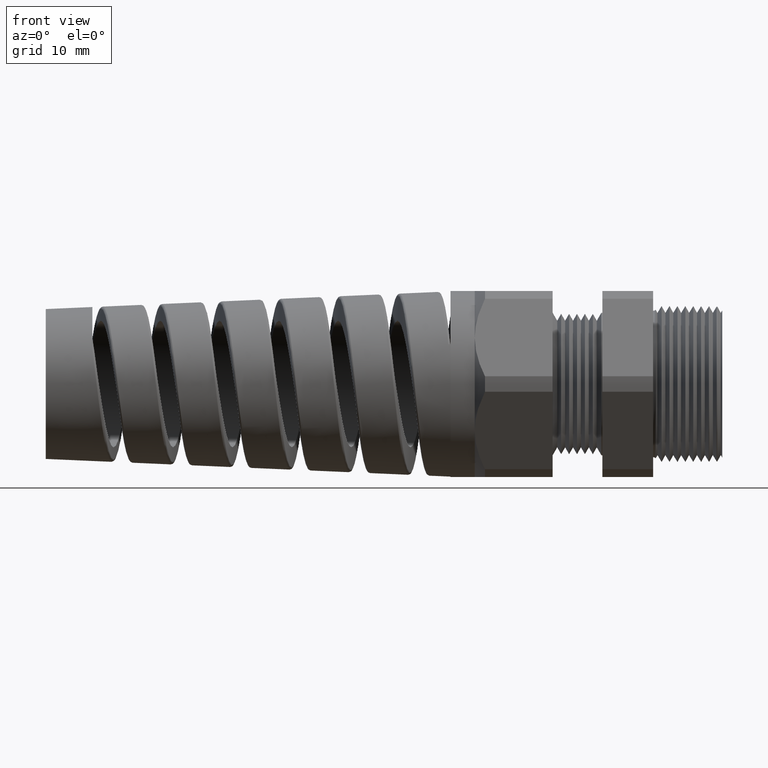
[diagram: clean part render]
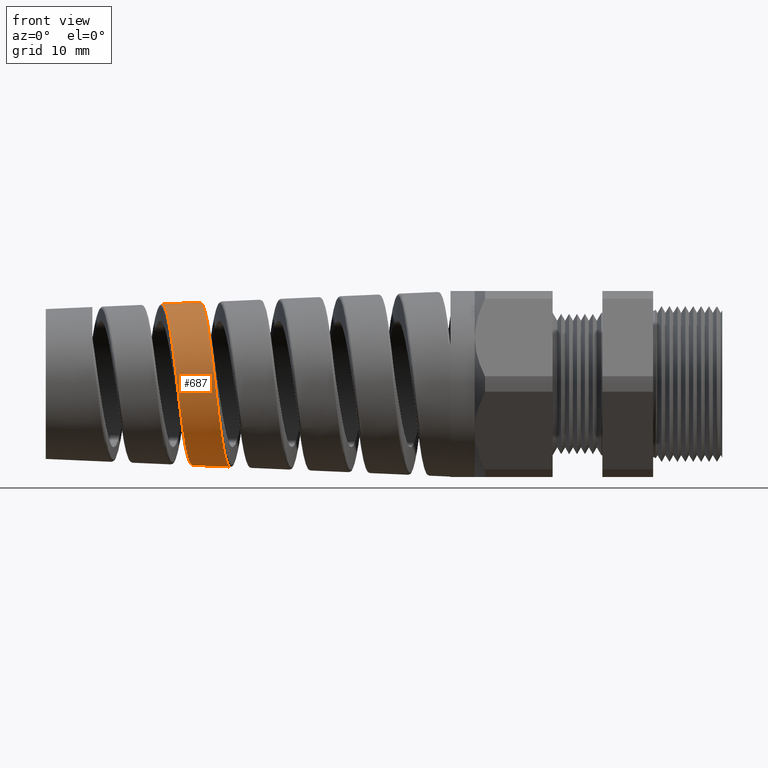
[diagram: same view with one face highlighted and labeled with its STEP entity id]
A machine part, front view. The second image highlights one B-rep face of the part: STEP entity #687.
In plain terms, the highlighted conical surface has half-angle 2.5 deg.
Its self-contained STEP definition (entity closure, byte-faithful):
#527 = VERTEX_POINT ( 'NONE', #2998 ) ;
#555 = VERTEX_POINT ( 'NONE', #3168 ) ;
#574 = VERTEX_POINT ( 'NONE', #3232 ) ;
#592 = EDGE_CURVE ( 'NONE', #555, #527, #3447, .T. ) ;
#606 = EDGE_LOOP ( 'NONE', ( #607, #608, #610, #611 ) ) ;
#607 = ORIENTED_EDGE ( 'NONE', *, *, #592, .F. ) ;
#608 = ORIENTED_EDGE ( 'NONE', *, *, #609, .T. ) ;
#609 = EDGE_CURVE ( 'NONE', #555, #574, #3526, .T. ) ;
#610 = ORIENTED_EDGE ( 'NONE', *, *, #633, .T. ) ;
#611 = ORIENTED_EDGE ( 'NONE', *, *, #612, .T. ) ;
#612 = EDGE_CURVE ( 'NONE', #631, #527, #3654, .T. ) ;
#631 = VERTEX_POINT ( 'NONE', #3766 ) ;
#633 = EDGE_CURVE ( 'NONE', #574, #631, #3764, .T. ) ;
#687 = ADVANCED_FACE ( 'NONE', ( #4289 ), #4312, .T. ) ;
#2998 = CARTESIAN_POINT ( 'NONE',  ( -2.597845326061966700, -7.211775052047706000E-014, 0.4128982398856435000 ) ) ;
#3168 = CARTESIAN_POINT ( 'NONE',  ( -2.790594084065443100, 6.457431289375594700E-013, 0.4044826473667671500 ) ) ;
#3232 = CARTESIAN_POINT ( 'NONE',  ( -2.640551593101815100, -1.067953076936129800E-014, -0.4110336439985810600 ) ) ;
#3444 = DIRECTION ( 'NONE',  ( 0.9990482215818576900, 5.341834311772762600E-018, 0.04361938736533631900 ) ) ;
#3445 = VECTOR ( 'NONE', #3444, 39.37007874015748100 ) ;
#3446 = CARTESIAN_POINT ( 'NONE',  ( -1.290000000000000300, 5.755839955992558400E-017, 0.4699999999999998600 ) ) ;
#3447 = LINE ( 'NONE', #3446, #3445 ) ;
#3526 = B_SPLINE_CURVE_WITH_KNOTS ( 'NONE', 3,
 ( #3614, #3613, #3612, #3611, #3610, #3609, #3608, #3607, #3606, #3605, #3604, #3603, #3602, #3601, #3600, #3599, #3598, #3597, #3596, #3595, #3594, #3593, #3592, #3591, #3590, #3589, #3588, #3587, #3586, #3585, #3584, #3583, #3582, #3581, #3580, #3579, #3578, #3577, #3576, #3575, #3574, #3573, #3572, #3571, #3570, #3569 ),
 .UNSPECIFIED., .F., .F.,
 ( 4, 2, 2, 2, 2, 2, 2, 2, 2, 2, 2, 2, 2, 2, 2, 2, 2, 2, 2, 2, 2, 2, 4 ),
 ( 0.07564942188339636400, 0.07771398169970587800, 0.07874626160786063500, 0.07977854151601537800, 0.08081082142417013400, 0.08184310133232489100, 0.08390766114863440500, 0.08493994105678917500, 0.08597222096494391800, 0.08803678078125343200, 0.08906906068940817500, 0.09010134059756293200, 0.09216590041387243100, 0.09423046023018194500, 0.09526274013833668800, 0.09629502004649145900, 0.09835957986280097200, 0.1004241396791104900, 0.1024886994954200000, 0.1035209794035747400, 0.1045532593117295100, 0.1066178191280390100, 0.1086823789443485300 ),
 .UNSPECIFIED. ) ;
#3569 = CARTESIAN_POINT ( 'NONE',  ( -2.640551593101815100, -1.067953076936129800E-014, -0.4110336439985810600 ) ) ;
#3570 = CARTESIAN_POINT ( 'NONE',  ( -2.643638505219184400, -0.02657501585116921200, -0.4108988665048604600 ) ) ;
#3571 = CARTESIAN_POINT ( 'NONE',  ( -2.646718839060767400, -0.05306635215078344500, -0.4082115956935021800 ) ) ;
#3572 = CARTESIAN_POINT ( 'NONE',  ( -2.652986150408361600, -0.1058606289678078700, -0.3975192401195236100 ) ) ;
#3573 = CARTESIAN_POINT ( 'NONE',  ( -2.656075945240358800, -0.1313509772339119000, -0.3896727058154218500 ) ) ;
#3574 = CARTESIAN_POINT ( 'NONE',  ( -2.660716368825528600, -0.1681401141674449300, -0.3743408486409195400 ) ) ;
#3575 = CARTESIAN_POINT ( 'NONE',  ( -2.662264968856898700, -0.1801680153474742000, -0.3686307043352423100 ) ) ;
#3576 = CARTESIAN_POINT ( 'NONE',  ( -2.665380330437649100, -0.2037421324785285400, -0.3559869555254486800 ) ) ;
#3577 = CARTESIAN_POINT ( 'NONE',  ( -2.666954248529145300, -0.2153368422750760500, -0.3490150010986474100 ) ) ;
#3578 = CARTESIAN_POINT ( 'NONE',  ( -2.671631543894721800, -0.2486854339591037500, -0.3266602058719139700 ) ) ;
#3579 = CARTESIAN_POINT ( 'NONE',  ( -2.674714619195190900, -0.2692074174760136800, -0.3097761908028989200 ) ) ;
#3580 = CARTESIAN_POINT ( 'NONE',  ( -2.680929825070202300, -0.3068674451848099600, -0.2721104530137489200 ) ) ;
#3581 = CARTESIAN_POINT ( 'NONE',  ( -2.684087239202104700, -0.3241028211047961600, -0.2511102690188631900 ) ) ;
#3582 = CARTESIAN_POINT ( 'NONE',  ( -2.690307760632954200, -0.3536974996390873600, -0.2068209913380521800 ) ) ;
#3583 = CARTESIAN_POINT ( 'NONE',  ( -2.693397066370862200, -0.3662493820645337800, -0.1833981227698374400 ) ) ;
#3584 = CARTESIAN_POINT ( 'NONE',  ( -2.698087969722746200, -0.3816513183055226200, -0.1463256304659227300 ) ) ;
#3585 = CARTESIAN_POINT ( 'NONE',  ( -2.699667370181171800, -0.3862200369990674300, -0.1335908144916983200 ) ) ;
#3586 = CARTESIAN_POINT ( 'NONE',  ( -2.702795252846726300, -0.3940020561404999300, -0.1079965711465525500 ) ) ;
#3587 = CARTESIAN_POINT ( 'NONE',  ( -2.704350822949189900, -0.3972433326385346700, -0.09508280657217389700 ) ) ;
#3588 = CARTESIAN_POINT ( 'NONE',  ( -2.709015046870334200, -0.4050556989728293400, -0.05600100340918542200 ) ) ;
#3589 = CARTESIAN_POINT ( 'NONE',  ( -2.712125383397518500, -0.4077339776247356200, -0.02945341492018577900 ) ) ;
#3590 = CARTESIAN_POINT ( 'NONE',  ( -2.718433197554022600, -0.4077922884286196400, 0.02439969757580686900 ) ) ;
#3591 = CARTESIAN_POINT ( 'NONE',  ( -2.721537698360792800, -0.4051795441912979800, 0.05089419831666543200 ) ) ;
#3592 = CARTESIAN_POINT ( 'NONE',  ( -2.726210023574334500, -0.3974473393240899900, 0.09000198615488010100 ) ) ;
#3593 = CARTESIAN_POINT ( 'NONE',  ( -2.727770046660760600, -0.3942298034253553500, 0.1029314908093576500 ) ) ;
#3594 = CARTESIAN_POINT ( 'NONE',  ( -2.730911009184930900, -0.3864840544780855400, 0.1285707293306473400 ) ) ;
#3595 = CARTESIAN_POINT ( 'NONE',  ( -2.732495865387805500, -0.3819361158568965700, 0.1413085716085779300 ) ) ;
#3596 = CARTESIAN_POINT ( 'NONE',  ( -2.737202057209368700, -0.3666066239015164900, 0.1783578878905386600 ) ) ;
#3597 = CARTESIAN_POINT ( 'NONE',  ( -2.740308817994052700, -0.3540874620673596900, 0.2017912541542011800 ) ) ;
#3598 = CARTESIAN_POINT ( 'NONE',  ( -2.745006148839786800, -0.3318895615906454800, 0.2350474378350919700 ) ) ;
#3599 = CARTESIAN_POINT ( 'NONE',  ( -2.746584237519356500, -0.3238867649159971600, 0.2458505756938486100 ) ) ;
#3600 = CARTESIAN_POINT ( 'NONE',  ( -2.749745017123538900, -0.3068207377416793400, 0.2666346307543276400 ) ) ;
#3601 = CARTESIAN_POINT ( 'NONE',  ( -2.751313331975982400, -0.2978394399070585800, 0.2765234805892316500 ) ) ;
#3602 = CARTESIAN_POINT ( 'NONE',  ( -2.756005728509800500, -0.2695939114840169600, 0.3047249977333631500 ) ) ;
#3603 = CARTESIAN_POINT ( 'NONE',  ( -2.759116987825232800, -0.2490402242727292600, 0.3215864095143296500 ) ) ;
#3604 = CARTESIAN_POINT ( 'NONE',  ( -2.763851920667741400, -0.2155704461132539600, 0.3438913198452532800 ) ) ;
#3605 = CARTESIAN_POINT ( 'NONE',  ( -2.765441366111852000, -0.2039679626873027200, 0.3508149923688300100 ) ) ;
#3606 = CARTESIAN_POINT ( 'NONE',  ( -2.768587750692219600, -0.1803883605224014000, 0.3633493006923471700 ) ) ;
#3607 = CARTESIAN_POINT ( 'NONE',  ( -2.770153601846701500, -0.1683492675697307300, 0.3690039252334162400 ) ) ;
#3608 = CARTESIAN_POINT ( 'NONE',  ( -2.773284029747510500, -0.1437815147227544100, 0.3791061278552103100 ) ) ;
#3609 = CARTESIAN_POINT ( 'NONE',  ( -2.774849165493653600, -0.1312529028789832800, 0.3835536482603972800 ) ) ;
#3610 = CARTESIAN_POINT ( 'NONE',  ( -2.777994391721427400, -0.1057012846946303300, 0.3912246210255597700 ) ) ;
#3611 = CARTESIAN_POINT ( 'NONE',  ( -2.779582346043929500, -0.09261104529929871400, 0.3944601602419575100 ) ) ;
#3612 = CARTESIAN_POINT ( 'NONE',  ( -2.784331980078875700, -0.05307654956517648300, 0.4021583282298105700 ) ) ;
#3613 = CARTESIAN_POINT ( 'NONE',  ( -2.787453783477083400, -0.02659534823955591100, 0.4046197558515134400 ) ) ;
#3614 = CARTESIAN_POINT ( 'NONE',  ( -2.790594084065443100, 6.457431289375594700E-013, 0.4044826473667671500 ) ) ;
#3615 = CARTESIAN_POINT ( 'NONE',  ( -2.578978352391649400, -0.1595401493523141100, 0.3824437383575017800 ) ) ;
#3616 = CARTESIAN_POINT ( 'NONE',  ( -2.575852586766770500, -0.1841074040533778600, 0.3709026579263849900 ) ) ;
#3617 = CARTESIAN_POINT ( 'NONE',  ( -2.572712243251698000, -0.2081593453715828700, 0.3581166181327493100 ) ) ;
#3618 = CARTESIAN_POINT ( 'NONE',  ( -2.571126232764451300, -0.2199887463234264400, 0.3510586516290533600 ) ) ;
#3619 = CARTESIAN_POINT ( 'NONE',  ( -2.566390062615004000, -0.2541780566262816200, 0.3282753082161024600 ) ) ;
#3620 = CARTESIAN_POINT ( 'NONE',  ( -2.563276319611233100, -0.2751587467247250700, 0.3110600728962639700 ) ) ;
#3621 = CARTESIAN_POINT ( 'NONE',  ( -2.558587096407187700, -0.3039775187611681300, 0.2822858318247125600 ) ) ;
#3622 = CARTESIAN_POINT ( 'NONE',  ( -2.557020332357838700, -0.3131385436700187000, 0.2721990699705069700 ) ) ;
#3623 = CARTESIAN_POINT ( 'NONE',  ( -2.553864621236673600, -0.3305422497410826500, 0.2510063581958502100 ) ) ;
#3624 = CARTESIAN_POINT ( 'NONE',  ( -2.552285211850424700, -0.3387265294031154800, 0.2399607221188778700 ) ) ;
#3625 = CARTESIAN_POINT ( 'NONE',  ( -2.547590184313560400, -0.3613944781303312100, 0.2060015788851859700 ) ) ;
#3626 = CARTESIAN_POINT ( 'NONE',  ( -2.544489196783734200, -0.3741692761688518200, 0.1820847243625468600 ) ) ;
#3627 = CARTESIAN_POINT ( 'NONE',  ( -2.539789003027303600, -0.3898068189056149700, 0.1442951404549291900 ) ) ;
#3628 = CARTESIAN_POINT ( 'NONE',  ( -2.538205349232397700, -0.3944473561496872900, 0.1313028369261906300 ) ) ;
#3629 = CARTESIAN_POINT ( 'NONE',  ( -2.535061756600646400, -0.4023604548521547100, 0.1051156132975873300 ) ) ;
#3630 = CARTESIAN_POINT ( 'NONE',  ( -2.533500504604366800, -0.4056460635834090400, 0.09191343408518004600 ) ) ;
#3631 = CARTESIAN_POINT ( 'NONE',  ( -2.528828174007897300, -0.4135400179158212900, 0.05199154568622237800 ) ) ;
#3632 = CARTESIAN_POINT ( 'NONE',  ( -2.525726580773352700, -0.4162042733763342000, 0.02495971702135556200 ) ) ;
#3633 = CARTESIAN_POINT ( 'NONE',  ( -2.519430457989285000, -0.4161496611131468800, -0.02995426471859139600 ) ) ;
#3634 = CARTESIAN_POINT ( 'NONE',  ( -2.516318546168910200, -0.4134137911962104700, -0.05710825563968299800 ) ) ;
#3635 = CARTESIAN_POINT ( 'NONE',  ( -2.511658232896980500, -0.4054415228104644200, -0.09699266799504634200 ) ) ;
#3636 = CARTESIAN_POINT ( 'NONE',  ( -2.510103650658834800, -0.4021346612602723600, -0.1101680387047160600 ) ) ;
#3637 = CARTESIAN_POINT ( 'NONE',  ( -2.506977581414541000, -0.3941985373099687900, -0.1362738811193656100 ) ) ;
#3638 = CARTESIAN_POINT ( 'NONE',  ( -2.505397947004925000, -0.3895382620540656600, -0.1492687659865351600 ) ) ;
#3639 = CARTESIAN_POINT ( 'NONE',  ( -2.500703624839488700, -0.3738099821077146000, -0.1871325873170045800 ) ) ;
#3640 = CARTESIAN_POINT ( 'NONE',  ( -2.497615442506206500, -0.3609956800753682000, -0.2110411634383256900 ) ) ;
#3641 = CARTESIAN_POINT ( 'NONE',  ( -2.491402504349323100, -0.3308020896956969100, -0.2562278023787750200 ) ) ;
#3642 = CARTESIAN_POINT ( 'NONE',  ( -2.488249898674433200, -0.3132133996483113500, -0.2776617881578137800 ) ) ;
#3643 = CARTESIAN_POINT ( 'NONE',  ( -2.482037447811841900, -0.2747610994522422500, -0.3161197560563879800 ) ) ;
#3644 = CARTESIAN_POINT ( 'NONE',  ( -2.478953820415830100, -0.2538168250780285000, -0.3333479209295797700 ) ) ;
#3645 = CARTESIAN_POINT ( 'NONE',  ( -2.474278410934112000, -0.2198022310982487600, -0.3561496494151317200 ) ) ;
#3646 = CARTESIAN_POINT ( 'NONE',  ( -2.472704806599359500, -0.2079690318397104100, -0.3632660536613193100 ) ) ;
#3647 = CARTESIAN_POINT ( 'NONE',  ( -2.469588268774982200, -0.1838935228416621900, -0.3761786657586820800 ) ) ;
#3648 = CARTESIAN_POINT ( 'NONE',  ( -2.468039853293590100, -0.1716126767957388600, -0.3820081254614266000 ) ) ;
#3649 = CARTESIAN_POINT ( 'NONE',  ( -2.463402216159560300, -0.1340591148797667100, -0.3976562796722521400 ) ) ;
#3650 = CARTESIAN_POINT ( 'NONE',  ( -2.460321149235582500, -0.1080820847798017300, -0.4056523108627024800 ) ) ;
#3651 = CARTESIAN_POINT ( 'NONE',  ( -2.454057750021596500, -0.05418170671904286300, -0.4165681973054674600 ) ) ;
#3652 = CARTESIAN_POINT ( 'NONE',  ( -2.450974368823395800, -0.02711959280144550200, -0.4193107643645551700 ) ) ;
#3653 = CARTESIAN_POINT ( 'NONE',  ( -2.447886787353730700, -3.609828005222353200E-015, -0.4194455710828277600 ) ) ;
#3654 = B_SPLINE_CURVE_WITH_KNOTS ( 'NONE', 3,
 ( #3653, #3652, #3651, #3650, #3649, #3648, #3647, #3646, #3645, #3644, #3643, #3642, #3641, #3640, #3639, #3638, #3637, #3636, #3635, #3634, #3633, #3632, #3631, #3630, #3629, #3628, #3627, #3626, #3625, #3624, #3623, #3622, #3621, #3620, #3619, #3618, #3617, #3616, #3615, #3696, #3695, #3694, #3693, #3692, #3691 ),
 .UNSPECIFIED., .F., .F.,
 ( 4, 2, 2, 2, 2, 2, 2, 2, 2, 2, 2, 2, 2, 2, 2, 2, 2, 2, 2, 1, 2, 2, 4 ),
 ( 0.2636588993386535500, 0.2657608995170169800, 0.2678628996953804100, 0.2689138997845621500, 0.2699648998737438400, 0.2720669000521072600, 0.2741689002304706900, 0.2762709004088341200, 0.2773219004980158100, 0.2783729005871975500, 0.2804749007655609700, 0.2825769009439244000, 0.2836279010331061400, 0.2846789011222878300, 0.2867809013006513100, 0.2878319013898330000, 0.2888829014790147400, 0.2909849016573781700, 0.2920359017465598600, 0.2930869018357416000, 0.2941379019249232800, 0.2951889020141050300, 0.2972909021924684500 ),
 .UNSPECIFIED. ) ;
#3691 = CARTESIAN_POINT ( 'NONE',  ( -2.597845326061966700, -7.211775052047706000E-014, 0.4128982398856435000 ) ) ;
#3692 = CARTESIAN_POINT ( 'NONE',  ( -2.594705642358744700, -0.02715273916876597600, 0.4130353214365560200 ) ) ;
#3693 = CARTESIAN_POINT ( 'NONE',  ( -2.591583359934301000, -0.05417245833865679000, 0.4105190453648857600 ) ) ;
#3694 = CARTESIAN_POINT ( 'NONE',  ( -2.586839849220316600, -0.09448756738330925400, 0.4026680069489092000 ) ) ;
#3695 = CARTESIAN_POINT ( 'NONE',  ( -2.585250630691951400, -0.1078658631179117100, 0.3993618369313971500 ) ) ;
#3696 = CARTESIAN_POINT ( 'NONE',  ( -2.582106253958031900, -0.1339594035851445800, 0.3915269338351477500 ) ) ;
#3764 = LINE ( 'NONE', #3788, #3787 ) ;
#3766 = CARTESIAN_POINT ( 'NONE',  ( -2.447886787353730700, -3.609828005222353200E-015, -0.4194455710828277600 ) ) ;
#3786 = DIRECTION ( 'NONE',  ( 0.9990482215818576900, 0.0000000000000000000, -0.04361938736533631900 ) ) ;
#3787 = VECTOR ( 'NONE', #3786, 39.37007874015748100 ) ;
#3788 = CARTESIAN_POINT ( 'NONE',  ( -1.290000000000000300, 0.0000000000000000000, -0.4699999999999998600 ) ) ;
#4289 = FACE_OUTER_BOUND ( 'NONE', #606, .T. ) ;
#4308 = DIRECTION ( 'NONE',  ( 0.0000000000000000000, 0.0000000000000000000, -1.000000000000000000 ) ) ;
#4309 = DIRECTION ( 'NONE',  ( 1.000000000000000000, 0.0000000000000000000, 0.0000000000000000000 ) ) ;
#4310 = CARTESIAN_POINT ( 'NONE',  ( -1.290000000000000300, 0.0000000000000000000, 0.0000000000000000000 ) ) ;
#4311 = AXIS2_PLACEMENT_3D ( 'NONE', #4310, #4309, #4308 ) ;
#4312 = CONICAL_SURFACE ( 'NONE', #4311, 0.4699999999999998600, 0.04363323129985855600 ) ;